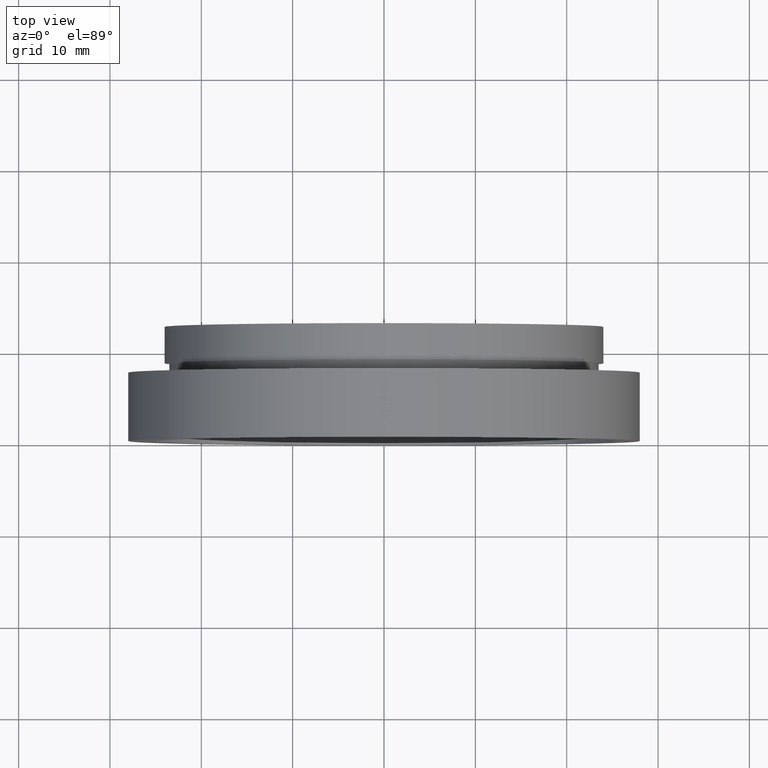
[diagram: clean part render]
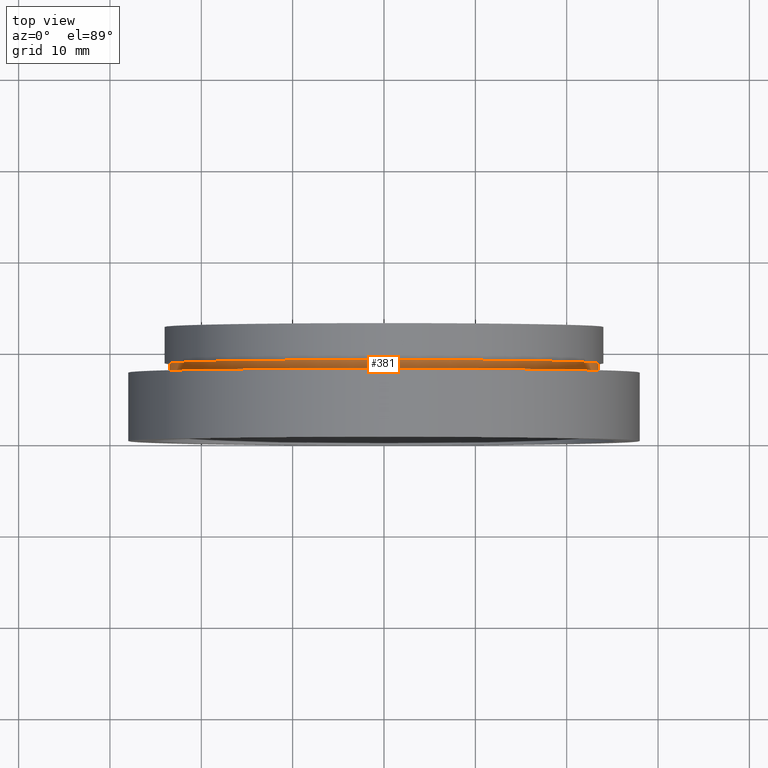
[diagram: same view with one face highlighted and labeled with its STEP entity id]
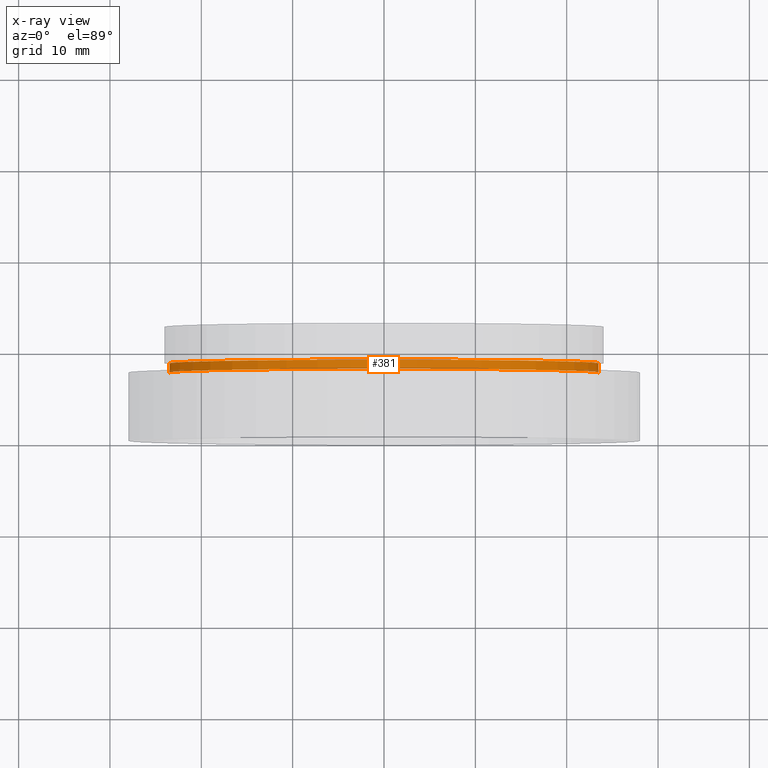
[diagram: x-ray of the same camera — body ghosted, the highlighted face saturated]
A machine part, top view. The second image highlights one B-rep face of the part: STEP entity #381.
The next image is the same camera in x-ray: the body ghosted, the highlighted face saturated — about 1% of this face is hidden behind the body in this view.
In plain terms, the highlighted cylindrical surface (partial cylindrical patch) has radius 23.5 mm, axis along (-0, 1, -0).
Its self-contained STEP definition (entity closure, byte-faithful):
#26 = CARTESIAN_POINT ( 'NONE',  ( 23.50000000000000000, 8.500000000000000000, 2.877919977996280300E-015 ) ) ;
#36 = ORIENTED_EDGE ( 'NONE', *, *, #85, .T. ) ;
#50 = VECTOR ( 'NONE', #349, 1000.000000000000000 ) ;
#54 = AXIS2_PLACEMENT_3D ( 'NONE', #140, #231, #241 ) ;
#59 = ORIENTED_EDGE ( 'NONE', *, *, #100, .F. ) ;
#60 = VECTOR ( 'NONE', #498, 1000.000000000000000 ) ;
#69 = AXIS2_PLACEMENT_3D ( 'NONE', #562, #195, #559 ) ;
#85 = EDGE_CURVE ( 'NONE', #169, #351, #114, .T. ) ;
#100 = EDGE_CURVE ( 'NONE', #343, #199, #189, .T. ) ;
#102 = CARTESIAN_POINT ( 'NONE',  ( 23.50000000000000000, 16.88601823708208000, 2.877919977996280300E-015 ) ) ;
#114 = LINE ( 'NONE', #102, #60 ) ;
#140 = CARTESIAN_POINT ( 'NONE',  ( 1.149455719078123100E-015, 7.499999999999996400, 0.0000000000000000000 ) ) ;
#169 = VERTEX_POINT ( 'NONE', #454 ) ;
#172 = FACE_OUTER_BOUND ( 'NONE', #424, .T. ) ;
#189 = LINE ( 'NONE', #205, #50 ) ;
#195 = DIRECTION ( 'NONE',  ( -1.224646799147351000E-016, 1.000000000000000000, -0.0000000000000000000 ) ) ;
#196 = CIRCLE ( 'NONE', #54, 23.50000000000000000 ) ;
#199 = VERTEX_POINT ( 'NONE', #422 ) ;
#205 = CARTESIAN_POINT ( 'NONE',  ( -23.50000000000000000, 16.88601823708207300, 0.0000000000000000000 ) ) ;
#207 = CYLINDRICAL_SURFACE ( 'NONE', #69, 23.50000000000000000 ) ;
#230 = AXIS2_PLACEMENT_3D ( 'NONE', #232, #561, #276 ) ;
#231 = DIRECTION ( 'NONE',  ( -1.224646799147351000E-016, 1.000000000000000000, -0.0000000000000000000 ) ) ;
#232 = CARTESIAN_POINT ( 'NONE',  ( 1.026991039163387900E-015, 8.499999999999996400, 0.0000000000000000000 ) ) ;
#235 = ORIENTED_EDGE ( 'NONE', *, *, #377, .T. ) ;
#241 = DIRECTION ( 'NONE',  ( -1.000000000000000000, -1.107270303814983300E-016, 0.0000000000000000000 ) ) ;
#259 = ORIENTED_EDGE ( 'NONE', *, *, #345, .F. ) ;
#276 = DIRECTION ( 'NONE',  ( -1.000000000000000000, -1.476360405086644300E-016, 0.0000000000000000000 ) ) ;
#329 = CARTESIAN_POINT ( 'NONE',  ( -23.50000000000000000, 7.499999999999993800, 0.0000000000000000000 ) ) ;
#343 = VERTEX_POINT ( 'NONE', #329 ) ;
#345 = EDGE_CURVE ( 'NONE', #199, #351, #440, .T. ) ;
#349 = DIRECTION ( 'NONE',  ( -1.224646799147351000E-016, 1.000000000000000000, -0.0000000000000000000 ) ) ;
#351 = VERTEX_POINT ( 'NONE', #26 ) ;
#377 = EDGE_CURVE ( 'NONE', #343, #169, #196, .T. ) ;
#381 = ADVANCED_FACE ( 'NONE', ( #172 ), #207, .T. ) ;
#422 = CARTESIAN_POINT ( 'NONE',  ( -23.50000000000000000, 8.499999999999992900, 0.0000000000000000000 ) ) ;
#424 = EDGE_LOOP ( 'NONE', ( #235, #36, #259, #59 ) ) ;
#440 = CIRCLE ( 'NONE', #230, 23.50000000000000000 ) ;
#454 = CARTESIAN_POINT ( 'NONE',  ( 23.50000000000000000, 7.499999999999999100, 2.877919977996280300E-015 ) ) ;
#498 = DIRECTION ( 'NONE',  ( -1.224646799147351000E-016, 1.000000000000000000, -0.0000000000000000000 ) ) ;
#559 = DIRECTION ( 'NONE',  ( -1.000000000000000000, -1.476360405086644300E-016, 0.0000000000000000000 ) ) ;
#561 = DIRECTION ( 'NONE',  ( -1.224646799147351000E-016, 1.000000000000000000, -0.0000000000000000000 ) ) ;
#562 = CARTESIAN_POINT ( 'NONE',  ( 0.0000000000000000000, 16.88601823708207700, 0.0000000000000000000 ) ) ;